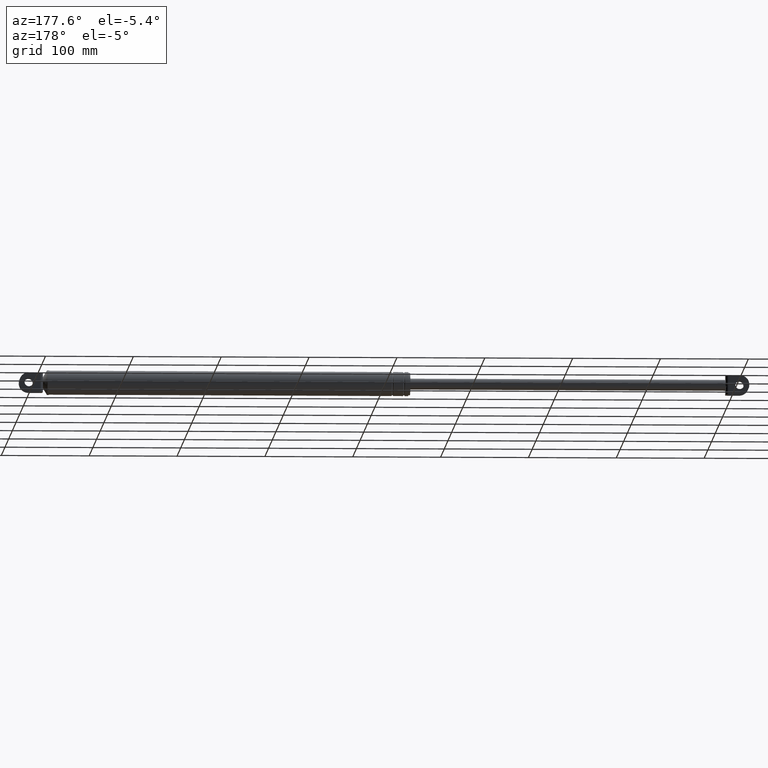
[diagram: clean part render]
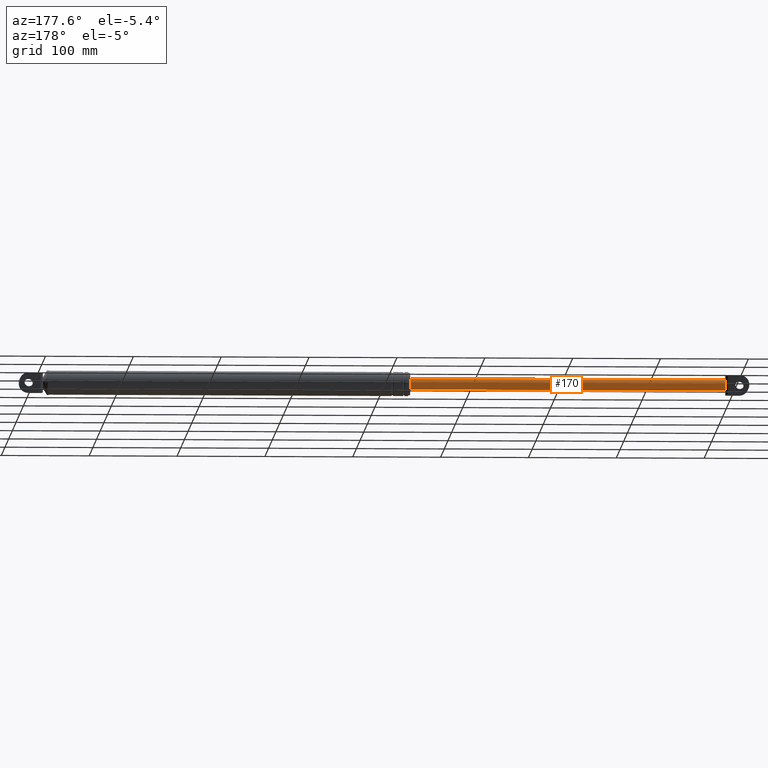
[diagram: same view with one face highlighted and labeled with its STEP entity id]
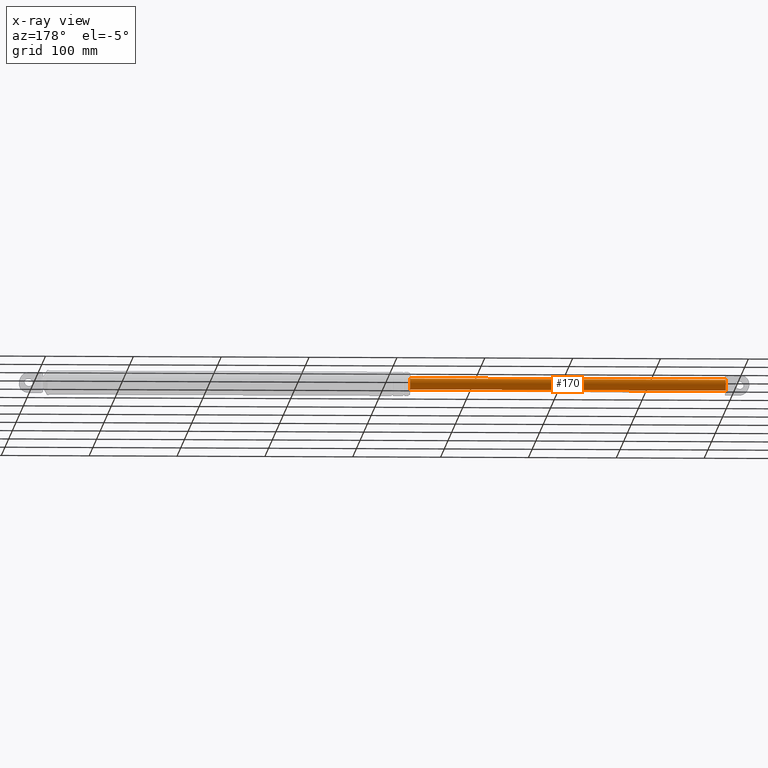
[diagram: x-ray of the same camera — body ghosted, the highlighted face saturated]
A machine part, auxiliary view. The second image highlights one B-rep face of the part: STEP entity #170.
The next image is the same camera in x-ray: the body ghosted, the highlighted face saturated — about 0% of this face is hidden behind the body in this view.
In plain terms, the highlighted cylindrical surface (edge-blend (fillet) strip) has radius 6.25 mm, axis along (1, 0, 0).
Its self-contained STEP definition (entity closure, byte-faithful):
#170=ADVANCED_FACE('',(#767),#766,.T.);
#766=CYLINDRICAL_SURFACE('',#1369,6.25000000000E+000);
#767=FACE_OUTER_BOUND('',#1370,.T.);
#1366=CARTESIAN_POINT('',(0.00000000000E+000,0.00000000000E+000,1.65677123967E+002));
#1367=DIRECTION('',(1.00000000000E+000,-0.00000000000E+000,-0.00000000000E+000));
#1368=DIRECTION('',(-0.00000000000E+000,-0.00000000000E+000,-1.00000000000E+000));
#1369=AXIS2_PLACEMENT_3D('',#1366,#1367,#1368);
#1370=EDGE_LOOP('',(#1680,#1681,#1682,#1683,#1684,#1685));
#1680=ORIENTED_EDGE('',*,*,#1827,.T.);
#1681=ORIENTED_EDGE('',*,*,#1858,.F.);
#1682=ORIENTED_EDGE('',*,*,#1840,.F.);
#1683=ORIENTED_EDGE('',*,*,#1823,.F.);
#1684=ORIENTED_EDGE('',*,*,#1833,.F.);
#1685=ORIENTED_EDGE('',*,*,#1859,.T.);
#1823=EDGE_CURVE('',#2625,#2618,#2632,.T.);
#1827=EDGE_CURVE('',#2652,#2651,#2659,.T.);
#1833=EDGE_CURVE('',#2691,#2625,#2698,.T.);
#1840=EDGE_CURVE('',#2618,#2746,#2747,.T.);
#1858=EDGE_CURVE('',#2746,#2651,#2862,.T.);
#1859=EDGE_CURVE('',#2691,#2652,#2868,.T.);
#2618=VERTEX_POINT('',#3392);
#2625=VERTEX_POINT('',#3397);
#2632=CIRCLE('',#3405,6.25000000000E+000);
#2651=VERTEX_POINT('',#3414);
#2652=VERTEX_POINT('',#3415);
#2659=CIRCLE('',#3423,6.25000000000E+000);
#2691=VERTEX_POINT('',#3439);
#2698=CIRCLE('',#3447,6.25000000000E+000);
#2746=VERTEX_POINT('',#3475);
#2747=CIRCLE('',#3479,6.25000000000E+000);
#2862=(BOUNDED_CURVE() B_SPLINE_CURVE(1,(#3544,#3545),.UNSPECIFIED.,.F.,.F.) B_SPLINE_CURVE_WITH_KNOTS((2,2),(2.63852243316E-002,9.73614775652E-001),.UNSPECIFIED.) CURVE() GEOMETRIC_REPRESENTATION_ITEM() RATIONAL_B_SPLINE_CURVE((1.00000000000E+000,1.00000000000E+000)) REPRESENTATION_ITEM('') );
#2868=(BOUNDED_CURVE() B_SPLINE_CURVE(1,(#3546,#3547),.UNSPECIFIED.,.F.,.F.) B_SPLINE_CURVE_WITH_KNOTS((2,2),(2.63852242744E-002,9.73614775726E-001),.UNSPECIFIED.) CURVE() GEOMETRIC_REPRESENTATION_ITEM() RATIONAL_B_SPLINE_CURVE((7.50000000000E-001,7.50000000000E-001)) REPRESENTATION_ITEM('') );
#3392=CARTESIAN_POINT('',(-1.98943648130E+002,5.49999700000E+000,1.62708532887E+002));
#3397=CARTESIAN_POINT('',(-1.98943648130E+002,5.49999700000E+000,1.68645715047E+002));
#3402=CARTESIAN_POINT('',(-1.98943648130E+002,0.00000000000E+000,1.65677123967E+002));
#3403=DIRECTION('',(-1.00000000000E+000,0.00000000000E+000,0.00000000000E+000));
#3404=DIRECTION('',(-0.00000000000E+000,-0.00000000000E+000,-1.00000000000E+000));
#3405=AXIS2_PLACEMENT_3D('',#3402,#3403,#3404);
#3414=CARTESIAN_POINT('',(1.60056351870E+002,-2.96059473233E-016,1.59427123967E+002));
#3415=CARTESIAN_POINT('',(1.60056351870E+002,0.00000000000E+000,1.71927123967E+002));
#3420=CARTESIAN_POINT('',(1.60056351870E+002,0.00000000000E+000,1.65677123967E+002));
#3421=DIRECTION('',(-1.00000000000E+000,0.00000000000E+000,0.00000000000E+000));
#3422=DIRECTION('',(0.00000000000E+000,-1.22460635382E-016,1.00000000000E+000));
#3423=AXIS2_PLACEMENT_3D('',#3420,#3421,#3422);
#3439=CARTESIAN_POINT('',(-1.98943648130E+002,7.89135262460E-007,1.71927123967E+002));
#3444=CARTESIAN_POINT('',(-1.98943648130E+002,0.00000000000E+000,1.65677123967E+002));
#3445=DIRECTION('',(-1.00000000000E+000,0.00000000000E+000,0.00000000000E+000));
#3446=DIRECTION('',(-0.00000000000E+000,-0.00000000000E+000,-1.00000000000E+000));
#3447=AXIS2_PLACEMENT_3D('',#3444,#3445,#3446);
#3475=CARTESIAN_POINT('',(-1.98943648130E+002,-4.27316397946E-012,1.59427123967E+002));
#3476=CARTESIAN_POINT('',(-1.98943648130E+002,0.00000000000E+000,1.65677123967E+002));
#3477=DIRECTION('',(-1.00000000000E+000,0.00000000000E+000,0.00000000000E+000));
#3478=DIRECTION('',(-0.00000000000E+000,8.79999520000E-001,-4.74974572793E-001));
#3479=AXIS2_PLACEMENT_3D('',#3476,#3477,#3478);
#3544=CARTESIAN_POINT('',(-1.98943648108E+002,0.00000000000E+000,1.59427123967E+002));
#3545=CARTESIAN_POINT('',(1.60056351842E+002,0.00000000000E+000,1.59427123967E+002));
#3546=CARTESIAN_POINT('',(-1.98943648130E+002,-2.96059473233E-016,1.71927123967E+002));
#3547=CARTESIAN_POINT('',(1.60056351870E+002,-2.96059473233E-016,1.71927123967E+002));